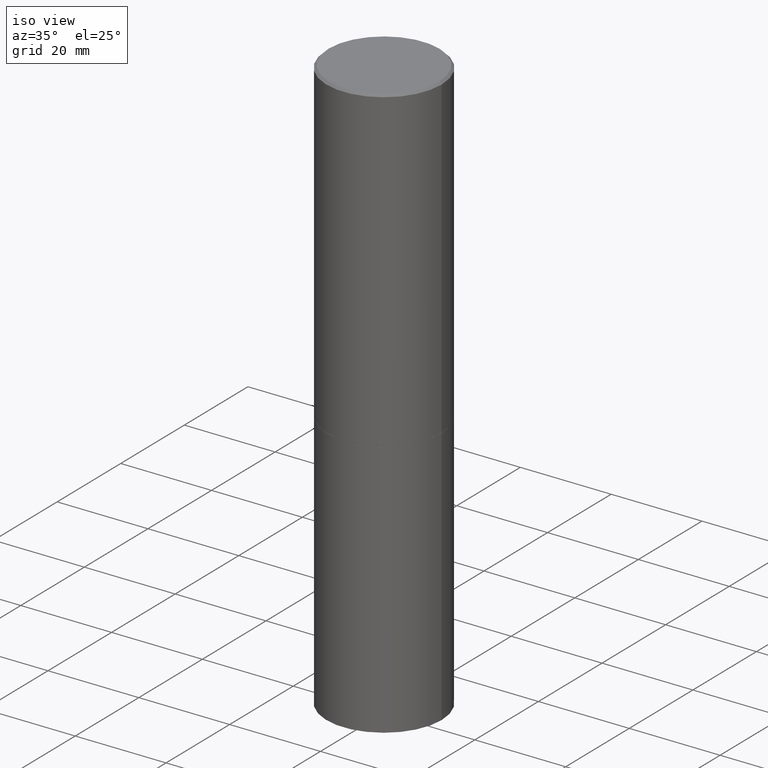
[diagram: clean part render]
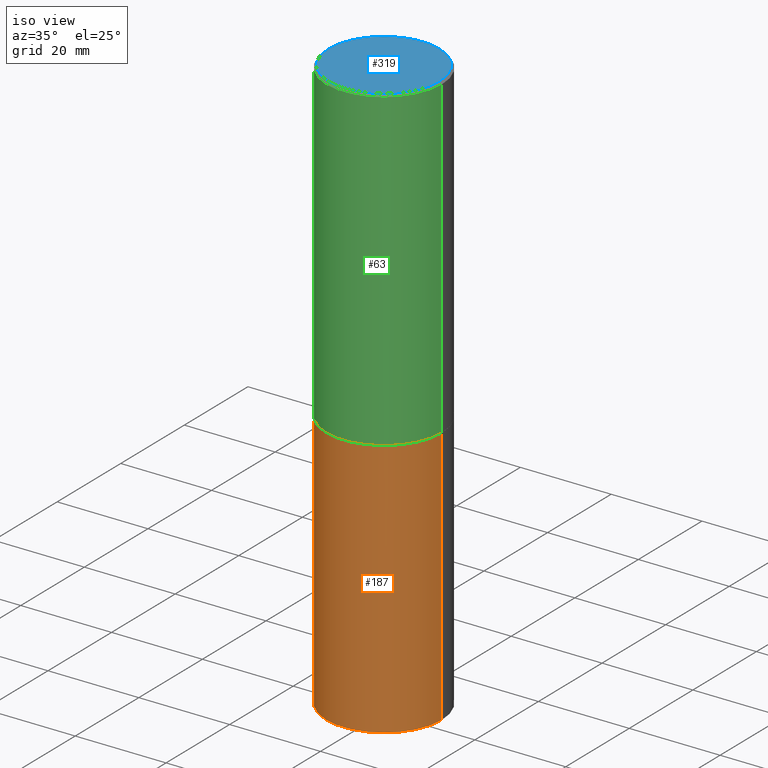
[diagram: same view with three faces highlighted in distinct colors, each labeled with its STEP entity id]
A machine part, iso view with three faces highlighted in distinct colors.
Their STEP definitions:

[orange] entity #187 — the highlighted cylindrical surface (partial cylindrical patch) has radius 12.7 mm, axis along (-0, 0, 1).
#5 = LINE ( 'NONE', #349, #232 ) ;
#16 = CARTESIAN_POINT ( 'NONE',  ( -0.5000000000000000000, -9.976776509216688154E-15, -2.750000000000000000 ) ) ;
#17 = AXIS2_PLACEMENT_3D ( 'NONE', #312, #364, #163 ) ;
#44 = ORIENTED_EDGE ( 'NONE', *, *, #113, .F. ) ;
#46 = ORIENTED_EDGE ( 'NONE', *, *, #90, .T. ) ;
#61 = DIRECTION ( 'NONE',  ( -2.445468806185136877E-29, 3.491481338843145188E-15, 1.000000000000000000 ) ) ;
#62 = CARTESIAN_POINT ( 'NONE',  ( 0.000000000000000000, 0.000000000000000000, 0.000000000000000000 ) ) ;
#64 = CYLINDRICAL_SURFACE ( 'NONE', #355, 0.5000000000000000000 ) ;
#71 = VERTEX_POINT ( 'NONE', #198 ) ;
#85 = LINE ( 'NONE', #208, #327 ) ;
#90 = EDGE_CURVE ( 'NONE', #71, #104, #179, .T. ) ;
#104 = VERTEX_POINT ( 'NONE', #244 ) ;
#113 = EDGE_CURVE ( 'NONE', #301, #251, #141, .T. ) ;
#141 = CIRCLE ( 'NONE', #280, 0.5000000000000000000 ) ;
#145 = CARTESIAN_POINT ( 'NONE',  ( 6.725039217009124520E-29, -9.601573681818649859E-15, -2.750000000000000000 ) ) ;
#153 = ORIENTED_EDGE ( 'NONE', *, *, #205, .F. ) ;
#160 = CARTESIAN_POINT ( 'NONE',  ( 0.5000000000000000000, -1.309305502066178321E-14, -2.750000000000000000 ) ) ;
#163 = DIRECTION ( 'NONE',  ( 1.000000000000000000, -6.982962677686266711E-15, 0.000000000000000000 ) ) ;
#169 = EDGE_CURVE ( 'NONE', #104, #251, #5, .T. ) ;
#172 = DIRECTION ( 'NONE',  ( -2.445468806185136597E-29, 3.491481338843145583E-15, 1.000000000000000000 ) ) ;
#174 = DIRECTION ( 'NONE',  ( -2.445468806185136597E-29, 3.491481338843145583E-15, 1.000000000000000000 ) ) ;
#179 = CIRCLE ( 'NONE', #17, 0.5000000000000000000 ) ;
#187 = ADVANCED_FACE ( 'NONE', ( #324 ), #64, .T. ) ;
#198 = CARTESIAN_POINT ( 'NONE',  ( -0.5000000000000000000, -9.976776509216688154E-15, -5.000000000000000000 ) ) ;
#205 = EDGE_CURVE ( 'NONE', #71, #301, #85, .T. ) ;
#208 = CARTESIAN_POINT ( 'NONE',  ( -0.5000000000000000000, 3.552713678800500929E-15, -2.459467545127452891E-29 ) ) ;
#209 = DIRECTION ( 'NONE',  ( 1.000000000000000000, -6.982962677686266711E-15, 0.000000000000000000 ) ) ;
#219 = ORIENTED_EDGE ( 'NONE', *, *, #169, .T. ) ;
#232 = VECTOR ( 'NONE', #240, 39.37007874015748143 ) ;
#234 = EDGE_LOOP ( 'NONE', ( #153, #46, #219, #44 ) ) ;
#240 = DIRECTION ( 'NONE',  ( -2.445468806185136877E-29, 3.491481338843145188E-15, 1.000000000000000000 ) ) ;
#244 = CARTESIAN_POINT ( 'NONE',  ( 0.5000000000000000000, -2.094888803305886324E-14, -5.000000000000000000 ) ) ;
#251 = VERTEX_POINT ( 'NONE', #160 ) ;
#280 = AXIS2_PLACEMENT_3D ( 'NONE', #145, #172, #209 ) ;
#301 = VERTEX_POINT ( 'NONE', #16 ) ;
#312 = CARTESIAN_POINT ( 'NONE',  ( 1.222734403092568523E-28, -1.745740669421572989E-14, -5.000000000000000000 ) ) ;
#324 = FACE_OUTER_BOUND ( 'NONE', #234, .T. ) ;
#326 = DIRECTION ( 'NONE',  ( 1.000000000000000000, -6.982962677686266711E-15, 4.876176775795935793E-29 ) ) ;
#327 = VECTOR ( 'NONE', #61, 39.37007874015748143 ) ;
#349 = CARTESIAN_POINT ( 'NONE',  ( 0.5000000000000000000, -3.491481338843133355E-15, 2.438088387897967896E-29 ) ) ;
#355 = AXIS2_PLACEMENT_3D ( 'NONE', #62, #174, #326 ) ;
#364 = DIRECTION ( 'NONE',  ( -2.445468806185136597E-29, 3.491481338843145583E-15, 1.000000000000000000 ) ) ;

[blue] entity #319 — the highlighted planar face has unit normal (0, -0, -1).
#6 = CARTESIAN_POINT ( 'NONE',  ( 3.351822085289405970E-15, 0.4799999999999997047, -1.669508273909558261E-15 ) ) ;
#8 = AXIS2_PLACEMENT_3D ( 'NONE', #152, #227, #13 ) ;
#13 = DIRECTION ( 'NONE',  ( 1.000000000000000000, -6.982962677686267499E-15, 4.876036955247132206E-29 ) ) ;
#22 = ORIENTED_EDGE ( 'NONE', *, *, #243, .T. ) ;
#37 = CARTESIAN_POINT ( 'NONE',  ( 0.4799999999999997047, -3.396558832296480127E-15, 1.280553747032483033E-17 ) ) ;
#45 = FACE_OUTER_BOUND ( 'NONE', #308, .T. ) ;
#103 = DIRECTION ( 'NONE',  ( 2.438088387897960049E-29, -3.491481338843145188E-15, -1.000000000000000000 ) ) ;
#106 = VERTEX_POINT ( 'NONE', #350 ) ;
#152 = CARTESIAN_POINT ( 'NONE',  ( -3.131554243005659264E-46, 4.471029511141341874E-32, 1.280553747030123384E-17 ) ) ;
#188 = DIRECTION ( 'NONE',  ( -2.445468806185136597E-29, 3.491481338843145583E-15, 1.000000000000000000 ) ) ;
#210 = CIRCLE ( 'NONE', #8, 0.4799999999999997047 ) ;
#216 = AXIS2_PLACEMENT_3D ( 'NONE', #217, #188, #275 ) ;
#217 = CARTESIAN_POINT ( 'NONE',  ( -3.131554243005659264E-46, 4.471029511141341874E-32, 1.280553747030123384E-17 ) ) ;
#227 = DIRECTION ( 'NONE',  ( -2.445468806185136597E-29, 3.491481338843145583E-15, 1.000000000000000000 ) ) ;
#233 = AXIS2_PLACEMENT_3D ( 'NONE', #6, #103, #353 ) ;
#243 = EDGE_CURVE ( 'NONE', #106, #354, #317, .T. ) ;
#275 = DIRECTION ( 'NONE',  ( 1.000000000000000000, -6.982962677686267499E-15, 4.876036955247132206E-29 ) ) ;
#283 = ORIENTED_EDGE ( 'NONE', *, *, #323, .T. ) ;
#308 = EDGE_LOOP ( 'NONE', ( #22, #283 ) ) ;
#317 = CIRCLE ( 'NONE', #216, 0.4799999999999997047 ) ;
#319 = ADVANCED_FACE ( 'NONE', ( #45 ), #357, .F. ) ;
#323 = EDGE_CURVE ( 'NONE', #354, #106, #210, .T. ) ;
#350 = CARTESIAN_POINT ( 'NONE',  ( -0.4799999999999997047, 3.386736898677837619E-15, 1.280553747027767124E-17 ) ) ;
#353 = DIRECTION ( 'NONE',  ( -1.000000000000000000, 6.982962677686265922E-15, -4.876176775795935793E-29 ) ) ;
#354 = VERTEX_POINT ( 'NONE', #37 ) ;
#357 = PLANE ( 'NONE',  #233 ) ;

[green] entity #63 — the highlighted cylindrical surface (partial cylindrical patch) has radius 12.7 mm, axis along (-0, 0, 1).
#3 = ORIENTED_EDGE ( 'NONE', *, *, #293, .T. ) ;
#12 = EDGE_CURVE ( 'NONE', #225, #273, #87, .T. ) ;
#26 = VECTOR ( 'NONE', #48, 39.37007874015748143 ) ;
#48 = DIRECTION ( 'NONE',  ( -2.445468806185136877E-29, 3.491481338843145188E-15, 1.000000000000000000 ) ) ;
#50 = AXIS2_PLACEMENT_3D ( 'NONE', #124, #218, #70 ) ;
#51 = VERTEX_POINT ( 'NONE', #114 ) ;
#63 = ADVANCED_FACE ( 'NONE', ( #343 ), #170, .T. ) ;
#68 = ORIENTED_EDGE ( 'NONE', *, *, #12, .T. ) ;
#70 = DIRECTION ( 'NONE',  ( 1.000000000000000000, -6.982962677686266711E-15, 0.000000000000000000 ) ) ;
#77 = CARTESIAN_POINT ( 'NONE',  ( 0.000000000000000000, 0.000000000000000000, 0.000000000000000000 ) ) ;
#87 = CIRCLE ( 'NONE', #254, 0.5000000000000000000 ) ;
#95 = LINE ( 'NONE', #302, #26 ) ;
#110 = EDGE_LOOP ( 'NONE', ( #134, #68, #3, #189 ) ) ;
#114 = CARTESIAN_POINT ( 'NONE',  ( -0.4999999999999997224, 3.421651712066268085E-15, -0.02000000000000011491 ) ) ;
#119 = CARTESIAN_POINT ( 'NONE',  ( -0.5000000000000000000, -1.281242234827833554E-15, -2.749000000000000110 ) ) ;
#121 = CIRCLE ( 'NONE', #50, 0.4999999999999997224 ) ;
#124 = CARTESIAN_POINT ( 'NONE',  ( 4.890937612370302060E-31, -6.982962677686331052E-17, -0.02000000000000011491 ) ) ;
#125 = AXIS2_PLACEMENT_3D ( 'NONE', #77, #201, #288 ) ;
#134 = ORIENTED_EDGE ( 'NONE', *, *, #274, .F. ) ;
#157 = CARTESIAN_POINT ( 'NONE',  ( 0.4999999999999998335, -3.491481338843132566E-15, 2.438088387897967336E-29 ) ) ;
#170 = CYLINDRICAL_SURFACE ( 'NONE', #125, 0.4999999999999998335 ) ;
#189 = ORIENTED_EDGE ( 'NONE', *, *, #290, .F. ) ;
#201 = DIRECTION ( 'NONE',  ( -2.445468806185136597E-29, 3.491481338843145583E-15, 1.000000000000000000 ) ) ;
#207 = DIRECTION ( 'NONE',  ( 1.000000000000000000, -6.982962677686266711E-15, 0.000000000000000000 ) ) ;
#218 = DIRECTION ( 'NONE',  ( -2.445468806185136597E-29, 3.491481338843145583E-15, 1.000000000000000000 ) ) ;
#225 = VERTEX_POINT ( 'NONE', #119 ) ;
#230 = DIRECTION ( 'NONE',  ( -2.445468806185136597E-29, 3.491481338843145583E-15, 1.000000000000000000 ) ) ;
#249 = CARTESIAN_POINT ( 'NONE',  ( 0.4999999999999997224, -3.500078625662627502E-15, -0.02000000000000011491 ) ) ;
#254 = AXIS2_PLACEMENT_3D ( 'NONE', #266, #230, #207 ) ;
#256 = VERTEX_POINT ( 'NONE', #249 ) ;
#266 = CARTESIAN_POINT ( 'NONE',  ( 6.722593748202941159E-29, -9.598082200479808430E-15, -2.749000000000000110 ) ) ;
#268 = VECTOR ( 'NONE', #337, 39.37007874015748143 ) ;
#271 = CARTESIAN_POINT ( 'NONE',  ( 0.5000000000000000000, -1.308956353932294179E-14, -2.749000000000000110 ) ) ;
#273 = VERTEX_POINT ( 'NONE', #271 ) ;
#274 = EDGE_CURVE ( 'NONE', #225, #51, #95, .T. ) ;
#288 = DIRECTION ( 'NONE',  ( 1.000000000000000000, -6.982962677686267499E-15, 4.876176775795936353E-29 ) ) ;
#290 = EDGE_CURVE ( 'NONE', #51, #256, #121, .T. ) ;
#293 = EDGE_CURVE ( 'NONE', #273, #256, #305, .T. ) ;
#302 = CARTESIAN_POINT ( 'NONE',  ( -0.4999999999999998335, 3.552713678800499746E-15, -2.459467545127452330E-29 ) ) ;
#305 = LINE ( 'NONE', #157, #268 ) ;
#337 = DIRECTION ( 'NONE',  ( -2.445468806185136877E-29, 3.491481338843145188E-15, 1.000000000000000000 ) ) ;
#343 = FACE_OUTER_BOUND ( 'NONE', #110, .T. ) ;